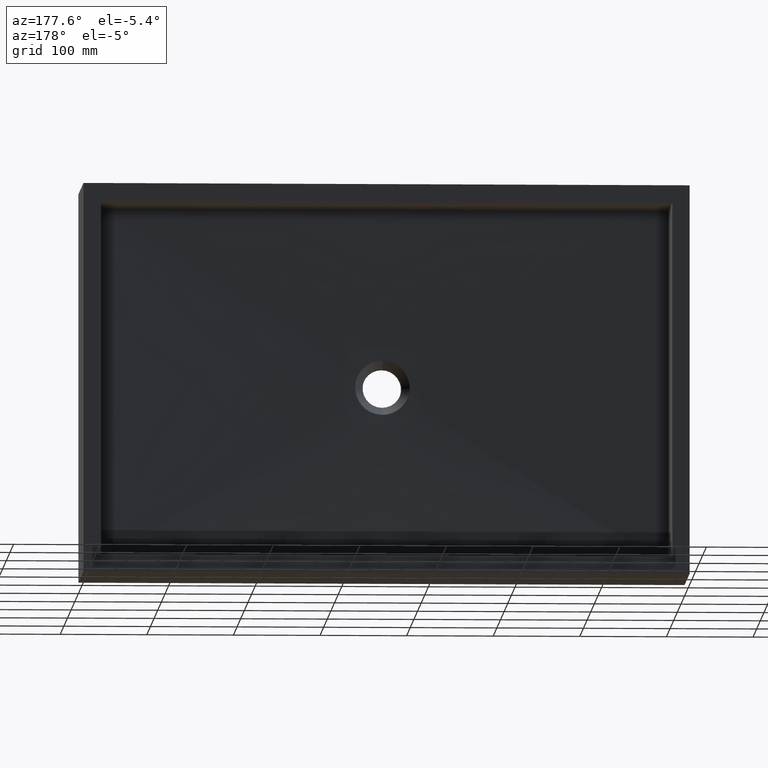
[diagram: clean part render]
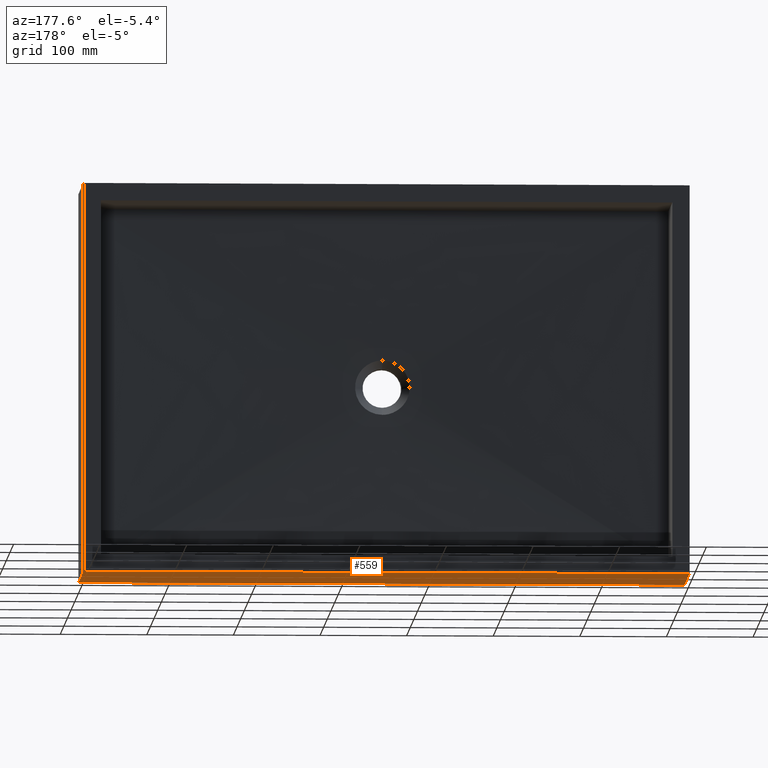
[diagram: same view with one face highlighted and labeled with its STEP entity id]
A machine part, auxiliary view. The second image highlights one B-rep face of the part: STEP entity #559.
In plain terms, the highlighted planar face has unit normal (0, 0, 1).
Its self-contained STEP definition (entity closure, byte-faithful):
#42 = CARTESIAN_POINT ( 'NONE',  ( 700.0000000000000000, 140.0000000000000000, -450.0000000000000000 ) ) ;
#74 = CARTESIAN_POINT ( 'NONE',  ( 0.0000000000000000000, 140.0000000000000000, -450.0000000000000000 ) ) ;
#110 = CARTESIAN_POINT ( 'NONE',  ( 700.0000000000000000, 0.0000000000000000000, -450.0000000000000000 ) ) ;
#133 = LINE ( 'NONE', #340, #761 ) ;
#202 = EDGE_CURVE ( 'NONE', #726, #1191, #133, .T. ) ;
#242 = EDGE_CURVE ( 'NONE', #353, #1082, #1049, .T. ) ;
#275 = CARTESIAN_POINT ( 'NONE',  ( 0.0000000000000000000, 0.0000000000000000000, -450.0000000000000000 ) ) ;
#277 = ORIENTED_EDGE ( 'NONE', *, *, #242, .T. ) ;
#339 = DIRECTION ( 'NONE',  ( -0.0000000000000000000, -1.000000000000000000, -0.0000000000000000000 ) ) ;
#340 = CARTESIAN_POINT ( 'NONE',  ( 0.0000000000000000000, 140.0000000000000000, -450.0000000000000000 ) ) ;
#353 = VERTEX_POINT ( 'NONE', #905 ) ;
#374 = LINE ( 'NONE', #275, #1018 ) ;
#480 = VECTOR ( 'NONE', #759, 1000.000000000000000 ) ;
#559 = ADVANCED_FACE ( 'NONE', ( #879 ), #1041, .F. ) ;
#583 = AXIS2_PLACEMENT_3D ( 'NONE', #765, #1075, #931 ) ;
#603 = ORIENTED_EDGE ( 'NONE', *, *, #650, .F. ) ;
#632 = DIRECTION ( 'NONE',  ( -0.0000000000000000000, -1.000000000000000000, -0.0000000000000000000 ) ) ;
#650 = EDGE_CURVE ( 'NONE', #353, #726, #887, .T. ) ;
#682 = CARTESIAN_POINT ( 'NONE',  ( 0.0000000000000000000, 140.0000000000000000, -450.0000000000000000 ) ) ;
#726 = VERTEX_POINT ( 'NONE', #74 ) ;
#759 = DIRECTION ( 'NONE',  ( -1.000000000000000000, -0.0000000000000000000, -0.0000000000000000000 ) ) ;
#761 = VECTOR ( 'NONE', #339, 1000.000000000000000 ) ;
#765 = CARTESIAN_POINT ( 'NONE',  ( 0.0000000000000000000, 140.0000000000000000, -450.0000000000000000 ) ) ;
#774 = DIRECTION ( 'NONE',  ( -1.000000000000000000, -0.0000000000000000000, -0.0000000000000000000 ) ) ;
#782 = EDGE_LOOP ( 'NONE', ( #927, #1161, #603, #277 ) ) ;
#879 = FACE_OUTER_BOUND ( 'NONE', #782, .T. ) ;
#887 = LINE ( 'NONE', #682, #480 ) ;
#905 = CARTESIAN_POINT ( 'NONE',  ( 700.0000000000000000, 140.0000000000000000, -450.0000000000000000 ) ) ;
#927 = ORIENTED_EDGE ( 'NONE', *, *, #1077, .T. ) ;
#931 = DIRECTION ( 'NONE',  ( 1.000000000000000000, 0.0000000000000000000, -0.0000000000000000000 ) ) ;
#1018 = VECTOR ( 'NONE', #774, 1000.000000000000000 ) ;
#1041 = PLANE ( 'NONE',  #583 ) ;
#1049 = LINE ( 'NONE', #42, #1219 ) ;
#1075 = DIRECTION ( 'NONE',  ( 0.0000000000000000000, 0.0000000000000000000, 1.000000000000000000 ) ) ;
#1077 = EDGE_CURVE ( 'NONE', #1082, #1191, #374, .T. ) ;
#1082 = VERTEX_POINT ( 'NONE', #110 ) ;
#1161 = ORIENTED_EDGE ( 'NONE', *, *, #202, .F. ) ;
#1168 = CARTESIAN_POINT ( 'NONE',  ( 0.0000000000000000000, 0.0000000000000000000, -450.0000000000000000 ) ) ;
#1191 = VERTEX_POINT ( 'NONE', #1168 ) ;
#1219 = VECTOR ( 'NONE', #632, 1000.000000000000000 ) ;